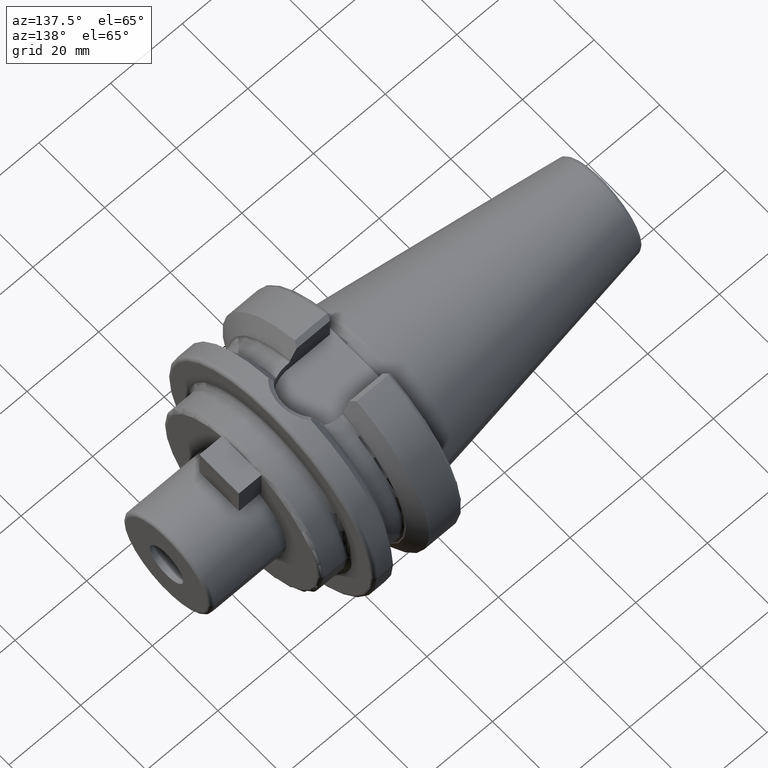
[diagram: clean part render]
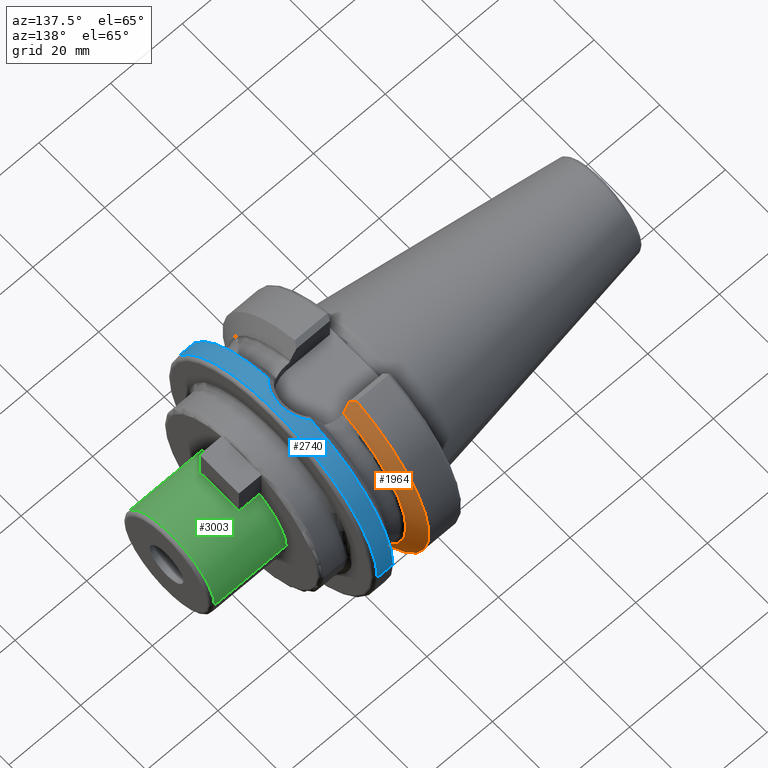
[diagram: same view with three faces highlighted in distinct colors, each labeled with its STEP entity id]
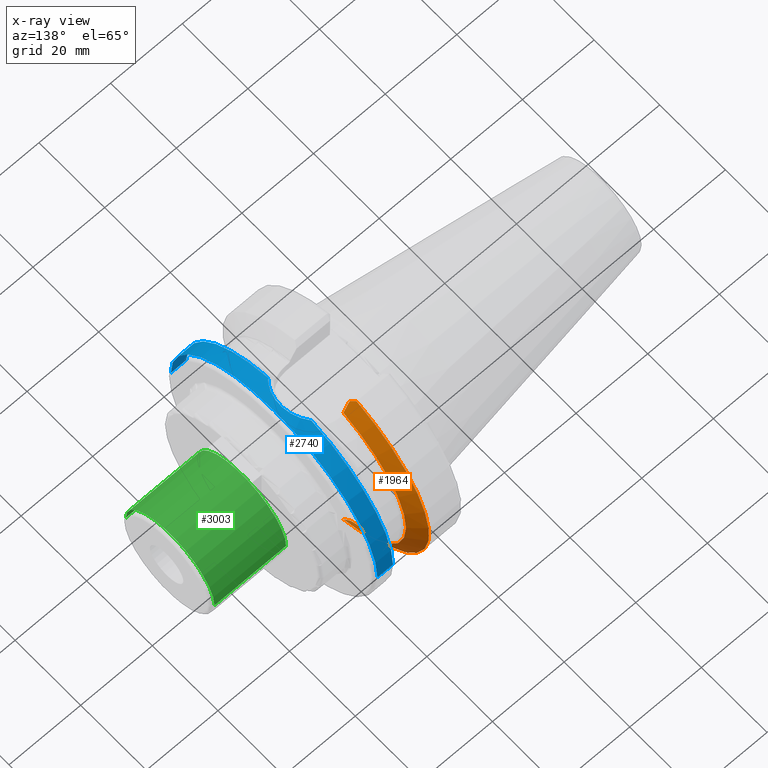
[diagram: x-ray of the same camera — body ghosted, the three highlighted faces saturated]
A machine part, auxiliary view with three faces highlighted in distinct colors.
The next image is the same camera in x-ray (body ghosted, the three faces saturated) — at least one of them is partly hidden behind the body in this view.
Their STEP definitions:

[orange] entity #1964 — the highlighted conical surface has half-angle 60 deg.
#155=CARTESIAN_POINT('',(1.212089730171E1,8.095E0,-2.944558475789E1));
#156=CARTESIAN_POINT('',(1.234623272522E1,8.095E0,-2.904081227564E1));
#157=CARTESIAN_POINT('',(1.279052069613E1,8.095E0,-2.824155997645E1));
#158=CARTESIAN_POINT('',(1.343761208926E1,8.095E0,-2.707376738597E1));
#159=CARTESIAN_POINT('',(1.385633764716E1,8.095E0,-2.631545873157E1));
#160=CARTESIAN_POINT('',(1.40625E1,8.095E0,-2.594139336151E1));
#200=CARTESIAN_POINT('',(1.40625E1,0.E0,0.E0));
#201=DIRECTION('',(1.E0,0.E0,0.E0));
#202=DIRECTION('',(0.E0,2.978832194960E-1,-9.546023190537E-1));
#203=AXIS2_PLACEMENT_3D('',#200,#201,#202);
#237=CARTESIAN_POINT('',(1.157272253103E1,0.E0,0.E0));
#238=DIRECTION('',(1.E0,0.E0,0.E0));
#239=DIRECTION('',(0.E0,2.875039130802E-1,-9.577794631143E-1));
#240=AXIS2_PLACEMENT_3D('',#237,#238,#239);
#622=CARTESIAN_POINT('',(1.212089730171E1,8.095E0,-2.944558475789E1));
#623=CARTESIAN_POINT('',(1.203210735485E1,8.251548423090E0,-2.956204177452E1));
#624=CARTESIAN_POINT('',(1.185196062668E1,8.567728822292E0,-2.979724967558E1));
#625=CARTESIAN_POINT('',(1.166666286204E1,8.890070036919E0,-3.003704063260E1));
#626=CARTESIAN_POINT('',(1.157272253103E1,9.052779463114E0,-3.015808084481E1));
#632=CARTESIAN_POINT('',(1.157272253103E1,9.393318983190E0,3.005375541808E1));
#633=CARTESIAN_POINT('',(1.170089151867E1,9.171323784651E0,2.989055444592E1));
#634=CARTESIAN_POINT('',(1.195252831620E1,8.732937755222E0,2.956827258282E1));
#635=CARTESIAN_POINT('',(1.219479613906E1,8.305773148711E0,2.925424020953E1));
#636=CARTESIAN_POINT('',(1.231359829731E1,8.095E0,2.909928918805E1));
#673=CARTESIAN_POINT('',(1.40625E1,8.095E0,2.594139336151E1));
#674=CARTESIAN_POINT('',(1.387619304722E1,8.095E0,2.627943267022E1));
#675=CARTESIAN_POINT('',(1.349822147379E1,8.095E0,2.696405968402E1));
#676=CARTESIAN_POINT('',(1.291532431893E1,8.095E0,2.801651320770E1));
#677=CARTESIAN_POINT('',(1.251595456147E1,8.095E0,2.873548878206E1));
#678=CARTESIAN_POINT('',(1.231359829731E1,8.095E0,2.909928918805E1));
#1424=CARTESIAN_POINT('',(1.40625E1,8.095E0,-2.594139336151E1));
#1425=CARTESIAN_POINT('',(1.40625E1,8.095E0,2.594139336151E1));
#1426=VERTEX_POINT('',#1424);
#1427=VERTEX_POINT('',#1425);
#1532=VERTEX_POINT('',#678);
#1540=VERTEX_POINT('',#155);
#1550=CARTESIAN_POINT('',(1.157272253103E1,9.052779463114E0,-3.015808084481E1));
#1551=CARTESIAN_POINT('',(1.157272253103E1,9.393318983190E0,3.005375541808E1));
#1552=VERTEX_POINT('',#1550);
#1553=VERTEX_POINT('',#1551);
#1947=CARTESIAN_POINT('',(1.281761126552E1,0.E0,0.E0));
#1948=DIRECTION('',(-1.E0,0.E0,0.E0));
#1949=DIRECTION('',(0.E0,1.E0,0.E0));
#1950=AXIS2_PLACEMENT_3D('',#1947,#1948,#1949);
#1951=CONICAL_SURFACE('',#1950,2.933128946210E1,6.E1);
#1953=ORIENTED_EDGE('',*,*,#1952,.F.);
#1955=ORIENTED_EDGE('',*,*,#1954,.F.);
#1956=ORIENTED_EDGE('',*,*,#1898,.T.);
#1957=ORIENTED_EDGE('',*,*,#1921,.T.);
#1959=ORIENTED_EDGE('',*,*,#1958,.T.);
#1961=ORIENTED_EDGE('',*,*,#1960,.F.);
#1962=EDGE_LOOP('',(#1953,#1955,#1956,#1957,#1959,#1961));
#1963=FACE_OUTER_BOUND('',#1962,.F.);
#1964=ADVANCED_FACE('',(#1963),#1951,.T.);
#161=B_SPLINE_CURVE_WITH_KNOTS('',3,(#155,#156,#157,#158,#159,#160),
.UNSPECIFIED.,.F.,.F.,(4,1,1,4),(0.E0,3.333333333333E-1,6.666666666667E-1,1.E0),
.UNSPECIFIED.);
#204=CIRCLE('',#203,2.717507892421E1);
#241=CIRCLE('',#240,3.14875E1);
#627=B_SPLINE_CURVE_WITH_KNOTS('',3,(#622,#623,#624,#625,#626),.UNSPECIFIED.,
.F.,.F.,(4,1,4),(0.E0,5.E-1,1.E0),.UNSPECIFIED.);
#637=B_SPLINE_CURVE_WITH_KNOTS('',3,(#632,#633,#634,#635,#636),.UNSPECIFIED.,
.F.,.F.,(4,1,4),(0.E0,5.E-1,1.E0),.UNSPECIFIED.);
#679=B_SPLINE_CURVE_WITH_KNOTS('',3,(#673,#674,#675,#676,#677,#678),
.UNSPECIFIED.,.F.,.F.,(4,1,1,4),(0.E0,3.333333333333E-1,6.666666666667E-1,1.E0),
.UNSPECIFIED.);
#1898=EDGE_CURVE('',#1540,#1426,#161,.T.);
#1921=EDGE_CURVE('',#1426,#1427,#204,.T.);
#1952=EDGE_CURVE('',#1552,#1553,#241,.T.);
#1954=EDGE_CURVE('',#1540,#1552,#627,.T.);
#1958=EDGE_CURVE('',#1427,#1532,#679,.T.);
#1960=EDGE_CURVE('',#1553,#1532,#637,.T.);

[blue] entity #2740 — the highlighted cylindrical surface (partial cylindrical patch) has radius 31.4875 mm, axis along (1, 0, 0).
#251=DIRECTION('',(-1.E0,0.E0,0.E0));
#252=VECTOR('',#251,4.372722531031E0);
#253=CARTESIAN_POINT('',(2.6E1,-3.14875E1,0.E0));
#254=LINE('',#253,#252);
#260=DIRECTION('',(-1.E0,0.E0,0.E0));
#261=VECTOR('',#260,4.372722531031E0);
#262=CARTESIAN_POINT('',(2.6E1,3.14875E1,0.E0));
#263=LINE('',#262,#261);
#787=CARTESIAN_POINT('',(2.162727746897E1,0.E0,0.E0));
#788=DIRECTION('',(1.E0,0.E0,0.E0));
#789=DIRECTION('',(0.E0,1.E0,0.E0));
#790=AXIS2_PLACEMENT_3D('',#787,#788,#789);
#792=CARTESIAN_POINT('',(2.6E1,0.E0,0.E0));
#793=DIRECTION('',(1.E0,0.E0,0.E0));
#794=DIRECTION('',(0.E0,1.E0,0.E0));
#795=AXIS2_PLACEMENT_3D('',#792,#793,#794);
#797=CARTESIAN_POINT('',(2.162727746897E1,0.E0,0.E0));
#798=DIRECTION('',(1.E0,0.E0,0.E0));
#799=DIRECTION('',(0.E0,-2.095835969751E-1,9.777907321503E-1));
#800=AXIS2_PLACEMENT_3D('',#797,#798,#799);
#802=CARTESIAN_POINT('',(2.162727746897E1,6.599266458023E0,3.078818504664E1));
#803=CARTESIAN_POINT('',(2.174833158986E1,6.472647497729E0,3.081532819542E1));
#804=CARTESIAN_POINT('',(2.224001076017E1,5.928319507915E0,3.092859425663E1));
#805=CARTESIAN_POINT('',(2.299264157127E1,4.865473008614E0,3.112101417878E1));
#806=CARTESIAN_POINT('',(2.370802134558E1,3.339564315076E0,3.132339202075E1));
#807=CARTESIAN_POINT('',(2.414652710220E1,1.714273004807E0,3.145540376701E1));
#808=CARTESIAN_POINT('',(2.429811527425E1,4.049253056535E-2,3.150243235345E1));
#809=CARTESIAN_POINT('',(2.416050694460E1,-1.633810434905E0,3.145971127167E1));
#810=CARTESIAN_POINT('',(2.373587321483E1,-3.262379309688E0,3.133159837426E1));
#811=CARTESIAN_POINT('',(2.303364301386E1,-4.794262913871E0,3.113217292109E1));
#812=CARTESIAN_POINT('',(2.227463190406E1,-5.886161097383E0,3.093695745132E1));
#813=CARTESIAN_POINT('',(2.176704574572E1,-6.453064676853E0,3.081952626248E1));
#814=CARTESIAN_POINT('',(2.162727746897E1,-6.599263509754E0,3.078818567858E1));
#1432=CARTESIAN_POINT('',(2.162727746897E1,3.14875E1,0.E0));
#1433=CARTESIAN_POINT('',(2.162727746897E1,6.599266458023E0,3.078818504664E1));
#1434=VERTEX_POINT('',#1432);
#1435=VERTEX_POINT('',#1433);
#1436=CARTESIAN_POINT('',(2.162727746897E1,-3.14875E1,0.E0));
#1438=VERTEX_POINT('',#1436);
#1440=CARTESIAN_POINT('',(2.6E1,3.14875E1,0.E0));
#1441=VERTEX_POINT('',#1440);
#1442=CARTESIAN_POINT('',(2.6E1,-3.14875E1,0.E0));
#1443=VERTEX_POINT('',#1442);
#1444=CARTESIAN_POINT('',(2.162727746897E1,-6.599263509754E0,3.078818567858E1));
#1445=VERTEX_POINT('',#1444);
#2725=CARTESIAN_POINT('',(-7.002E1,0.E0,0.E0));
#2726=DIRECTION('',(1.E0,0.E0,0.E0));
#2727=DIRECTION('',(0.E0,-1.E0,0.E0));
#2728=AXIS2_PLACEMENT_3D('',#2725,#2726,#2727);
#2729=CYLINDRICAL_SURFACE('',#2728,3.14875E1);
#2730=ORIENTED_EDGE('',*,*,#2639,.F.);
#2731=ORIENTED_EDGE('',*,*,#2025,.F.);
#2733=ORIENTED_EDGE('',*,*,#2732,.T.);
#2734=ORIENTED_EDGE('',*,*,#2021,.T.);
#2735=ORIENTED_EDGE('',*,*,#2652,.F.);
#2737=ORIENTED_EDGE('',*,*,#2736,.F.);
#2738=EDGE_LOOP('',(#2730,#2731,#2733,#2734,#2735,#2737));
#2739=FACE_OUTER_BOUND('',#2738,.F.);
#2740=ADVANCED_FACE('',(#2739),#2729,.T.);
#791=CIRCLE('',#790,3.14875E1);
#796=CIRCLE('',#795,3.14875E1);
#801=CIRCLE('',#800,3.14875E1);
#815=B_SPLINE_CURVE_WITH_KNOTS('',3,(#802,#803,#804,#805,#806,#807,#808,#809,
#810,#811,#812,#813,#814),.UNSPECIFIED.,.F.,.F.,(4,1,1,1,1,1,1,1,1,1,4),(0.E0,
3.624421393369E-2,1.514830587561E-1,2.667219035786E-1,3.819607484011E-1,
4.971995932235E-1,6.124384380460E-1,7.276772828685E-1,8.429161276909E-1,
9.581549725134E-1,1.E0),.UNSPECIFIED.);
#2021=EDGE_CURVE('',#1443,#1438,#254,.T.);
#2025=EDGE_CURVE('',#1441,#1434,#263,.T.);
#2639=EDGE_CURVE('',#1434,#1435,#791,.T.);
#2652=EDGE_CURVE('',#1445,#1438,#801,.T.);
#2732=EDGE_CURVE('',#1441,#1443,#796,.T.);
#2736=EDGE_CURVE('',#1435,#1445,#815,.T.);

[green] entity #3003 — the highlighted cylindrical surface (partial cylindrical patch) has radius 13.5 mm, axis along (1, 0, 0).
#946=CARTESIAN_POINT('',(3.5E1,0.E0,0.E0));
#947=DIRECTION('',(1.E0,0.E0,0.E0));
#948=DIRECTION('',(0.E0,1.E0,0.E0));
#949=AXIS2_PLACEMENT_3D('',#946,#947,#948);
#1018=CARTESIAN_POINT('',(5.5E1,0.E0,0.E0));
#1019=DIRECTION('',(-1.E0,0.E0,0.E0));
#1020=DIRECTION('',(0.E0,-1.E0,0.E0));
#1021=AXIS2_PLACEMENT_3D('',#1018,#1019,#1020);
#1038=DIRECTION('',(-1.E0,0.E0,4.135189076432E-14));
#1039=VECTOR('',#1038,2.E1);
#1040=CARTESIAN_POINT('',(5.5E1,1.35E1,-8.259356331672E-13));
#1041=LINE('',#1040,#1039);
#1042=DIRECTION('',(-1.E0,0.E0,-4.133087790489E-14));
#1043=VECTOR('',#1042,2.E1);
#1044=CARTESIAN_POINT('',(5.5E1,-1.35E1,8.255153759786E-13));
#1045=LINE('',#1044,#1043);
#1611=CARTESIAN_POINT('',(3.5E1,1.35E1,0.E0));
#1612=CARTESIAN_POINT('',(3.5E1,-1.35E1,0.E0));
#1613=VERTEX_POINT('',#1611);
#1614=VERTEX_POINT('',#1612);
#1615=CARTESIAN_POINT('',(5.5E1,1.35E1,0.E0));
#1616=CARTESIAN_POINT('',(5.5E1,-1.35E1,0.E0));
#1617=VERTEX_POINT('',#1615);
#1618=VERTEX_POINT('',#1616);
#2989=CARTESIAN_POINT('',(2.555E1,0.E0,0.E0));
#2990=DIRECTION('',(1.E0,0.E0,0.E0));
#2991=DIRECTION('',(0.E0,-1.E0,0.E0));
#2992=AXIS2_PLACEMENT_3D('',#2989,#2990,#2991);
#2993=CYLINDRICAL_SURFACE('',#2992,1.35E1);
#2995=ORIENTED_EDGE('',*,*,#2994,.F.);
#2997=ORIENTED_EDGE('',*,*,#2996,.T.);
#2998=ORIENTED_EDGE('',*,*,#2960,.F.);
#3000=ORIENTED_EDGE('',*,*,#2999,.F.);
#3001=EDGE_LOOP('',(#2995,#2997,#2998,#3000));
#3002=FACE_OUTER_BOUND('',#3001,.F.);
#3003=ADVANCED_FACE('',(#3002),#2993,.T.);
#950=CIRCLE('',#949,1.35E1);
#1022=CIRCLE('',#1021,1.35E1);
#2960=EDGE_CURVE('',#1613,#1614,#950,.T.);
#2994=EDGE_CURVE('',#1618,#1617,#1022,.T.);
#2996=EDGE_CURVE('',#1618,#1614,#1045,.T.);
#2999=EDGE_CURVE('',#1617,#1613,#1041,.T.);